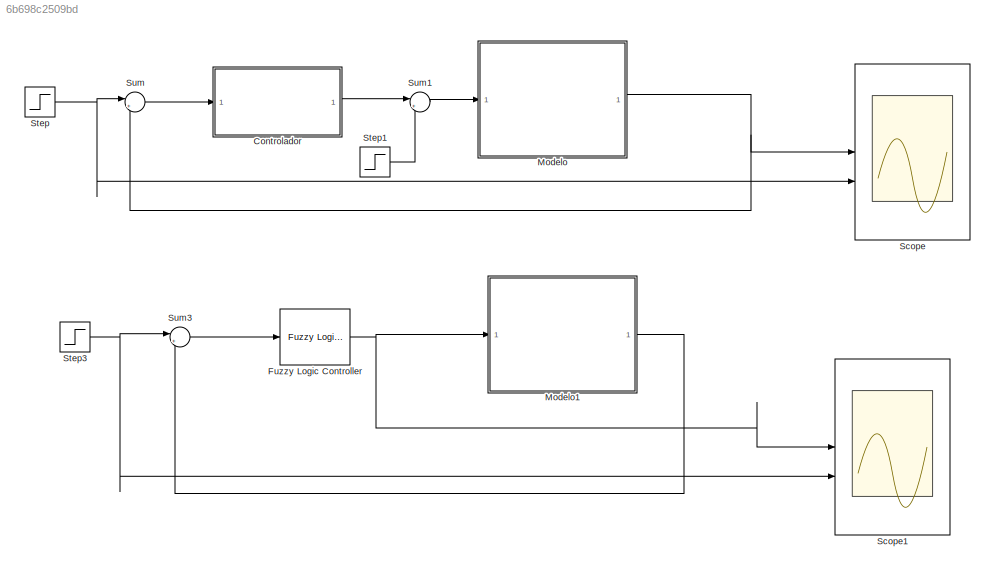
MODEL slx_6b698c2509bd
KIND model
CONFIG AbsTol = auto
CONFIG EnableMultiTasking = off
CONFIG FixedStep = Ts
CONFIG MaxStep = auto
CONFIG MinStep = auto
CONFIG RelTol = 1e-3
CONFIG SampleTimeConstraint = Unconstrained
CONFIG SolverName = FixedStepAuto
CONFIG StartTime = 0.0
CONFIG StopTime = Tsim
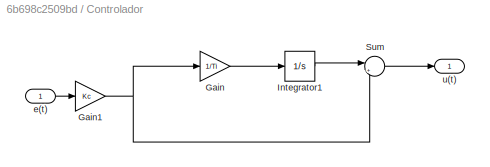
BLOCK [SubSystem] Controlador
BLOCK [Gain] Controlador/Gain
  Gain = 1/Ti
BLOCK [Gain] Controlador/Gain1
  Gain = Kc
BLOCK [Integrator] Controlador/Integrator1
  InitialCondition = X0/K
BLOCK [Sum] Controlador/Sum
  Inputs = |++
BLOCK [Inport] Controlador/e(t)
BLOCK [Outport] Controlador/u(t)
BLOCK [Reference] Fuzzy Logic Controller  REF=fuzblock/Fuzzy Logic   (lib defined in mdl_858b3b3e7478)
Controller
  SourceBlock = fuzblock/Fuzzy Logic \nController
  SourceType = Fuzzy Inference System
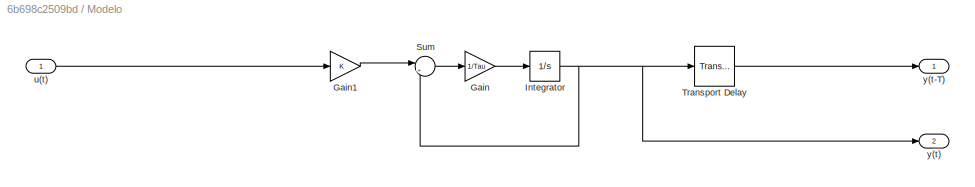
BLOCK [SubSystem] Modelo
BLOCK [Gain] Modelo/Gain
  Gain = 1/Tau
BLOCK [Gain] Modelo/Gain1
  Gain = K
BLOCK [Integrator] Modelo/Integrator
  InitialCondition = X0
BLOCK [Sum] Modelo/Sum
  Inputs = |+-
BLOCK [TransportDelay] Modelo/Transport Delay
  DelayTime = t0
  InitialOutput = X0
BLOCK [Inport] Modelo/u(t)
BLOCK [Outport] Modelo/y(t)
  Port = 2
BLOCK [Outport] Modelo/y(t-T)
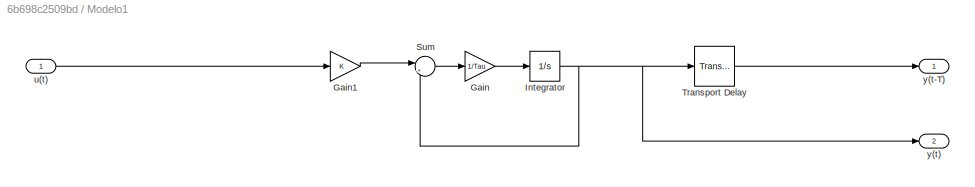
BLOCK [SubSystem] Modelo1
BLOCK [Gain] Modelo1/Gain
  Gain = 1/Tau
BLOCK [Gain] Modelo1/Gain1
  Gain = K
BLOCK [Integrator] Modelo1/Integrator
  InitialCondition = X0
BLOCK [Sum] Modelo1/Sum
  Inputs = |+-
BLOCK [TransportDelay] Modelo1/Transport Delay
  DelayTime = t0
  InitialOutput = X0
BLOCK [Inport] Modelo1/u(t)
BLOCK [Outport] Modelo1/y(t)
  Port = 2
BLOCK [Outport] Modelo1/y(t-T)
BLOCK [Scope] Scope
  Floating = off
  NumInputPorts = 2
  ScopeSpecificationString = Simulink.scopes.TimeScopeBlockCfg('CurrentConfiguration', extmgr.ConfigurationSet(extmgr.Configuration('Core','General UI',true),extmgr.Configuration('Core','Source UI',true),extmgr.Configuration('Sources','WiredSimulink',true,'DataLoggingVariableName','y','DataLogging',true,'DataLoggingSaveFormat','StructureWithTime'),extmgr.Configuration('Visuals','Time Domain',true,'SerializedDisplays',{struct(...<+1504ch>
BLOCK [Scope] Scope1
  Floating = off
  NumInputPorts = 2
  ScopeSpecificationString = Simulink.scopes.TimeScopeBlockCfg('CurrentConfiguration', extmgr.ConfigurationSet(extmgr.Configuration('Core','General UI',true),extmgr.Configuration('Core','Source UI',true),extmgr.Configuration('Sources','WiredSimulink',true,'DataLoggingVariableName','ScopeData1','DataLogging',true,'DataLoggingSaveFormat','StructureWithTime'),extmgr.Configuration('Visuals','Time Domain',true,'SerializedDisplays'...<+1529ch>
BLOCK [Step] Step
  After = 0.3
  Before = X0
  SampleTime = 0
  Time = 250
BLOCK [Step] Step1
  After = 0.01
  SampleTime = 0
  Time = 500
BLOCK [Step] Step3
  After = 0.3
  Before = X0
  SampleTime = 0
  Time = 250
BLOCK [Sum] Sum
  Inputs = |+-
BLOCK [Sum] Sum1
  Inputs = |++
BLOCK [Sum] Sum3
  Inputs = |+-
NET Controlador/Gain1:1 -> Controlador/Gain:1, Controlador/Sum:2
LINE Controlador/Gain:1 -> Controlador/Integrator1:1
LINE Controlador/Integrator1:1 -> Controlador/Sum:1
LINE Controlador/Sum:1 -> Controlador/u(t):1
LINE Controlador/e(t):1 -> Controlador/Gain1:1
LINE Controlador:1 -> Sum1:1
NET Fuzzy Logic Controller:1 -> Modelo1:1, Scope1:1
LINE Modelo/Gain1:1 -> Modelo/Sum:1
LINE Modelo/Gain:1 -> Modelo/Integrator:1
NET Modelo/Integrator:1 -> Modelo/Sum:2, Modelo/Transport Delay:1, Modelo/y(t):1
LINE Modelo/Sum:1 -> Modelo/Gain:1
LINE Modelo/Transport Delay:1 -> Modelo/y(t-T):1
LINE Modelo/u(t):1 -> Modelo/Gain1:1
LINE Modelo1/Gain1:1 -> Modelo1/Sum:1
LINE Modelo1/Gain:1 -> Modelo1/Integrator:1
NET Modelo1/Integrator:1 -> Modelo1/Sum:2, Modelo1/Transport Delay:1, Modelo1/y(t):1
LINE Modelo1/Sum:1 -> Modelo1/Gain:1
LINE Modelo1/Transport Delay:1 -> Modelo1/y(t-T):1
LINE Modelo1/u(t):1 -> Modelo1/Gain1:1
LINE Modelo1:1 -> Sum3:2
NET Modelo:1 -> Scope:1, Sum:2
LINE Step1:1 -> Sum1:2
NET Step3:1 -> Scope1:2, Sum3:1
NET Step:1 -> Scope:2, Sum:1
LINE Sum1:1 -> Modelo:1
LINE Sum3:1 -> Fuzzy Logic Controller:1
LINE Sum:1 -> Controlador:1
note: NET lines group one-source signal fan-out (src -> all destinations, sorted); 1:1 wires keep LINE
